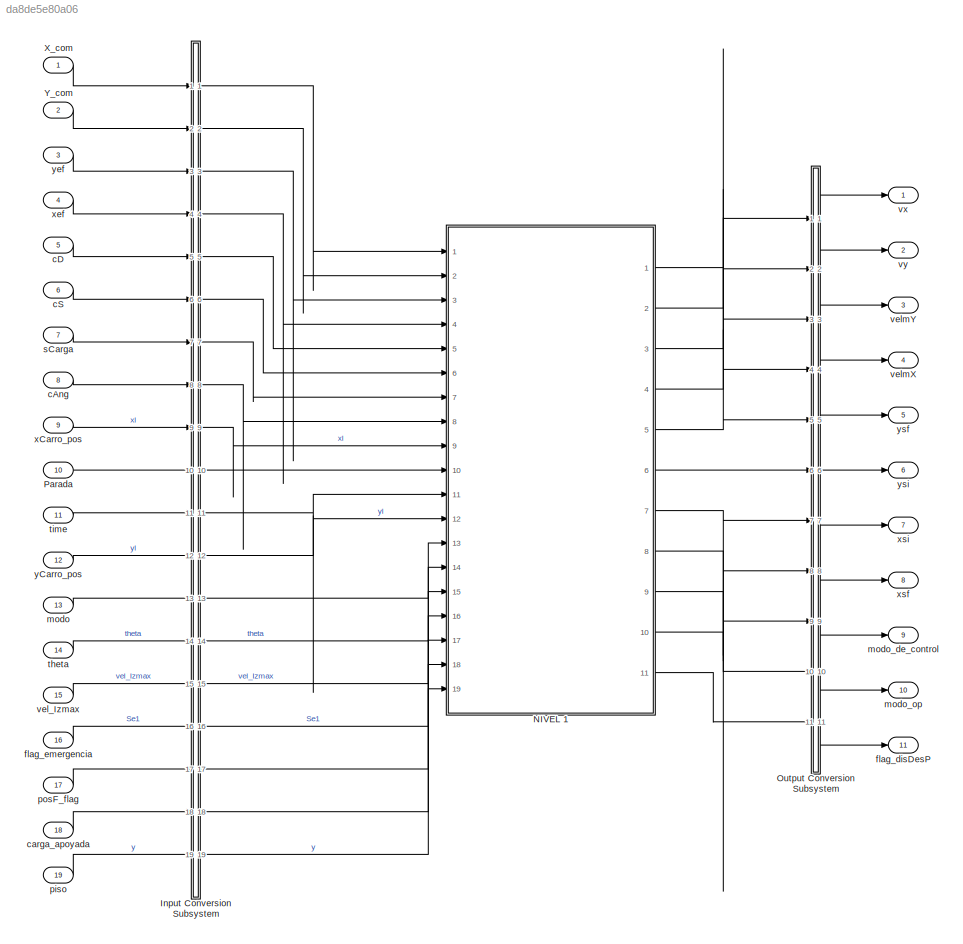
MODEL slx_da8de5e80a06
KIND model
CONFIG AbsTol = auto
CONFIG EnableMultiTasking = off
CONFIG FixedStep = 1e-2
CONFIG MaxStep = 1e-4
CONFIG MinStep = auto
CONFIG RelTol = 1e-3
CONFIG SampleTimeConstraint = Unconstrained
CONFIG SolverName = FixedStepAuto
CONFIG StartTime = 0.0
CONFIG StopTime = inf
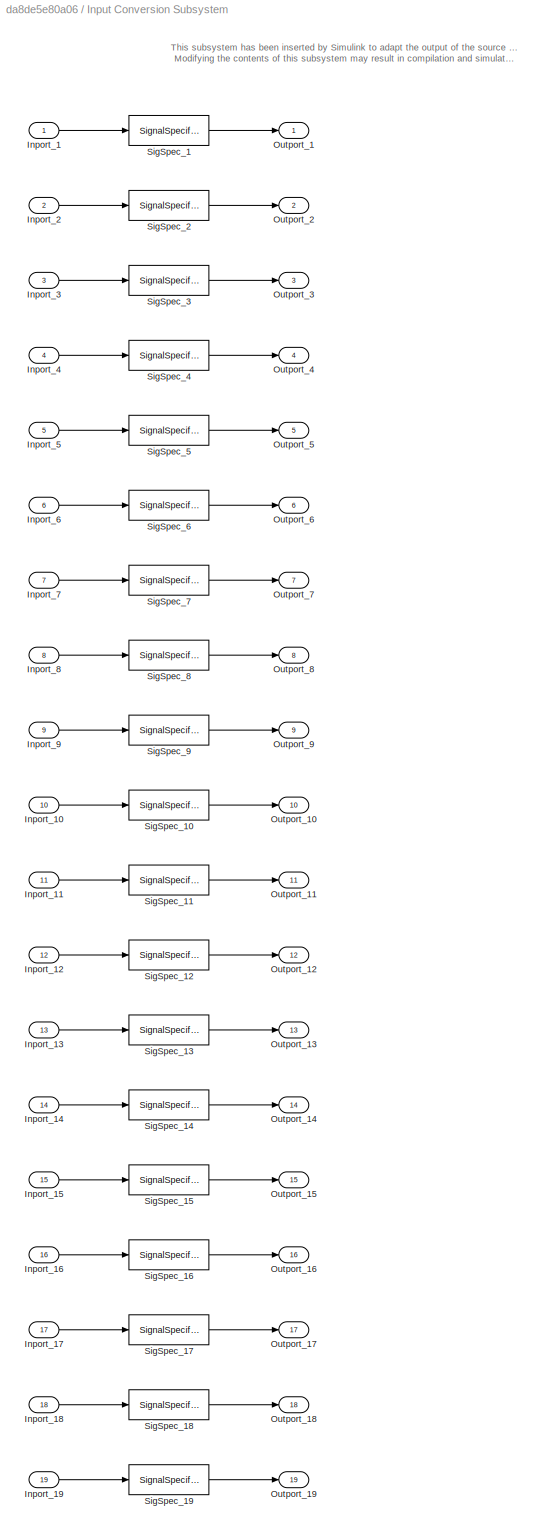
BLOCK [SubSystem] Input Conversion Subsystem
  AttributesFormatString = %<Description>
  Description = Signal spec.\nand routing
  Permissions = ReadOnly
  PermitHierarchicalResolution = ExplicitOnly
  Ports = [19, 19]
  RequestExecContextInheritance = off
  Tag = __SLT_ICS__
  UserDataPersistent = on
BLOCK [Inport] Input Conversion Subsystem/Inport_1
BLOCK [Inport] Input Conversion Subsystem/Inport_10
  Port = 10
BLOCK [Inport] Input Conversion Subsystem/Inport_11
  Port = 11
BLOCK [Inport] Input Conversion Subsystem/Inport_12
  Port = 12
BLOCK [Inport] Input Conversion Subsystem/Inport_13
  Port = 13
BLOCK [Inport] Input Conversion Subsystem/Inport_14
  Port = 14
BLOCK [Inport] Input Conversion Subsystem/Inport_15
  Port = 15
BLOCK [Inport] Input Conversion Subsystem/Inport_16
  Port = 16
BLOCK [Inport] Input Conversion Subsystem/Inport_17
  Port = 17
BLOCK [Inport] Input Conversion Subsystem/Inport_18
  Port = 18
BLOCK [Inport] Input Conversion Subsystem/Inport_19
  Port = 19
BLOCK [Inport] Input Conversion Subsystem/Inport_2
  Port = 2
BLOCK [Inport] Input Conversion Subsystem/Inport_3
  Port = 3
BLOCK [Inport] Input Conversion Subsystem/Inport_4
  Port = 4
BLOCK [Inport] Input Conversion Subsystem/Inport_5
  Port = 5
BLOCK [Inport] Input Conversion Subsystem/Inport_6
  Port = 6
BLOCK [Inport] Input Conversion Subsystem/Inport_7
  Port = 7
BLOCK [Inport] Input Conversion Subsystem/Inport_8
  Port = 8
BLOCK [Inport] Input Conversion Subsystem/Inport_9
  Port = 9
BLOCK [Outport] Input Conversion Subsystem/Outport_1
BLOCK [Outport] Input Conversion Subsystem/Outport_10
  Port = 10
BLOCK [Outport] Input Conversion Subsystem/Outport_11
  Port = 11
BLOCK [Outport] Input Conversion Subsystem/Outport_12
  Port = 12
BLOCK [Outport] Input Conversion Subsystem/Outport_13
  Port = 13
BLOCK [Outport] Input Conversion Subsystem/Outport_14
  Port = 14
BLOCK [Outport] Input Conversion Subsystem/Outport_15
  Port = 15
BLOCK [Outport] Input Conversion Subsystem/Outport_16
  Port = 16
BLOCK [Outport] Input Conversion Subsystem/Outport_17
  Port = 17
BLOCK [Outport] Input Conversion Subsystem/Outport_18
  Port = 18
BLOCK [Outport] Input Conversion Subsystem/Outport_19
  Port = 19
BLOCK [Outport] Input Conversion Subsystem/Outport_2
  Port = 2
BLOCK [Outport] Input Conversion Subsystem/Outport_3
  Port = 3
BLOCK [Outport] Input Conversion Subsystem/Outport_4
  Port = 4
BLOCK [Outport] Input Conversion Subsystem/Outport_5
  Port = 5
BLOCK [Outport] Input Conversion Subsystem/Outport_6
  Port = 6
BLOCK [Outport] Input Conversion Subsystem/Outport_7
  Port = 7
BLOCK [Outport] Input Conversion Subsystem/Outport_8
  Port = 8
BLOCK [Outport] Input Conversion Subsystem/Outport_9
  Port = 9
BLOCK [SignalSpecification] Input Conversion Subsystem/SigSpec_1
  Dimensions = [1]
  OutDataTypeStr = double
  SampleTime = 0.01
  SignalType = real
  VarSizeSig = No
BLOCK [SignalSpecification] Input Conversion Subsystem/SigSpec_10
  Dimensions = [1]
  OutDataTypeStr = double
  SampleTime = 0.01
  SignalType = real
  VarSizeSig = No
BLOCK [SignalSpecification] Input Conversion Subsystem/SigSpec_11
  Dimensions = [1]
  OutDataTypeStr = double
  SampleTime = [0, 0]
  SignalType = real
  VarSizeSig = No
BLOCK [SignalSpecification] Input Conversion Subsystem/SigSpec_12
  Dimensions = [1]
  OutDataTypeStr = double
  SampleTime = [0, 0]
  SignalType = real
  VarSizeSig = No
BLOCK [SignalSpecification] Input Conversion Subsystem/SigSpec_13
  Dimensions = [1]
  OutDataTypeStr = double
  SampleTime = 0.01
  SignalType = real
  VarSizeSig = No
BLOCK [SignalSpecification] Input Conversion Subsystem/SigSpec_14
  Dimensions = [1]
  OutDataTypeStr = double
  SampleTime = [0, 0]
  SignalType = real
  VarSizeSig = No
BLOCK [SignalSpecification] Input Conversion Subsystem/SigSpec_15
  Dimensions = [1]
  OutDataTypeStr = double
  SampleTime = 0.01
  SignalType = real
  VarSizeSig = No
BLOCK [SignalSpecification] Input Conversion Subsystem/SigSpec_16
  Dimensions = [1]
  OutDataTypeStr = double
  SampleTime = 0.01
  SignalType = real
  VarSizeSig = No
BLOCK [SignalSpecification] Input Conversion Subsystem/SigSpec_17
  Dimensions = [1]
  OutDataTypeStr = double
  SampleTime = [-1, 0]
  SignalType = real
  VarSizeSig = No
BLOCK [SignalSpecification] Input Conversion Subsystem/SigSpec_18
  Dimensions = [1]
  OutDataTypeStr = double
  SampleTime = [0, 0]
  SignalType = real
  VarSizeSig = No
BLOCK [SignalSpecification] Input Conversion Subsystem/SigSpec_19
  Dimensions = [1]
  OutDataTypeStr = double
  SampleTime = [0, 0]
  SignalType = real
  VarSizeSig = No
BLOCK [SignalSpecification] Input Conversion Subsystem/SigSpec_2
  Dimensions = [1]
  OutDataTypeStr = double
  SampleTime = 0.01
  SignalType = real
  VarSizeSig = No
BLOCK [SignalSpecification] Input Conversion Subsystem/SigSpec_3
  Dimensions = [1]
  OutDataTypeStr = double
  SampleTime = [-1, 0]
  SignalType = real
  VarSizeSig = No
BLOCK [SignalSpecification] Input Conversion Subsystem/SigSpec_4
  Dimensions = [1]
  OutDataTypeStr = double
  SampleTime = [-1, 0]
  SignalType = real
  VarSizeSig = No
BLOCK [SignalSpecification] Input Conversion Subsystem/SigSpec_5
  Dimensions = [1]
  OutDataTypeStr = double
  SampleTime = 0.01
  SignalType = real
  VarSizeSig = No
BLOCK [SignalSpecification] Input Conversion Subsystem/SigSpec_6
  Dimensions = [1]
  OutDataTypeStr = double
  SampleTime = 0.01
  SignalType = real
  VarSizeSig = No
BLOCK [SignalSpecification] Input Conversion Subsystem/SigSpec_7
  Dimensions = [1]
  OutDataTypeStr = double
  SampleTime = [-1, 0]
  SignalType = real
  VarSizeSig = No
BLOCK [SignalSpecification] Input Conversion Subsystem/SigSpec_8
  Dimensions = [1]
  OutDataTypeStr = double
  SampleTime = [-1, 0]
  SignalType = real
  VarSizeSig = No
BLOCK [SignalSpecification] Input Conversion Subsystem/SigSpec_9
  Dimensions = [1]
  OutDataTypeStr = double
  SampleTime = [0, 0]
  SignalType = real
  VarSizeSig = No
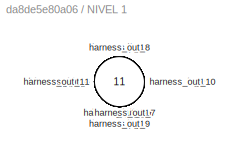
BLOCK [SubSystem] NIVEL 1
  Ports = [19, 11]
  RequestExecContextInheritance = off
  Tag = __SL_testing_harness_stub_
BLOCK [Inport] NIVEL 1/harness_in_1
BLOCK [Inport] NIVEL 1/harness_in_10
  Port = 10
BLOCK [Inport] NIVEL 1/harness_in_11
  Port = 11
BLOCK [Inport] NIVEL 1/harness_in_12
  Port = 12
BLOCK [Inport] NIVEL 1/harness_in_13
  Port = 13
BLOCK [Inport] NIVEL 1/harness_in_14
  Port = 14
BLOCK [Inport] NIVEL 1/harness_in_15
  Port = 15
BLOCK [Inport] NIVEL 1/harness_in_16
  Port = 16
BLOCK [Inport] NIVEL 1/harness_in_17
  Port = 17
BLOCK [Inport] NIVEL 1/harness_in_18
  Port = 18
BLOCK [Inport] NIVEL 1/harness_in_19
  Port = 19
BLOCK [Inport] NIVEL 1/harness_in_2
  Port = 2
BLOCK [Inport] NIVEL 1/harness_in_3
  Port = 3
BLOCK [Inport] NIVEL 1/harness_in_4
  Port = 4
BLOCK [Inport] NIVEL 1/harness_in_5
  Port = 5
BLOCK [Inport] NIVEL 1/harness_in_6
  Port = 6
BLOCK [Inport] NIVEL 1/harness_in_7
  Port = 7
BLOCK [Inport] NIVEL 1/harness_in_8
  Port = 8
BLOCK [Inport] NIVEL 1/harness_in_9
  Port = 9
BLOCK [Outport] NIVEL 1/harness_out_1
BLOCK [Outport] NIVEL 1/harness_out_10
  Port = 10
BLOCK [Outport] NIVEL 1/harness_out_11
  Port = 11
BLOCK [Outport] NIVEL 1/harness_out_2
  Port = 2
BLOCK [Outport] NIVEL 1/harness_out_3
  Port = 3
BLOCK [Outport] NIVEL 1/harness_out_4
  Port = 4
BLOCK [Outport] NIVEL 1/harness_out_5
  Port = 5
BLOCK [Outport] NIVEL 1/harness_out_6
  Port = 6
BLOCK [Outport] NIVEL 1/harness_out_7
  Port = 7
BLOCK [Outport] NIVEL 1/harness_out_8
  Port = 8
BLOCK [Outport] NIVEL 1/harness_out_9
  Port = 9
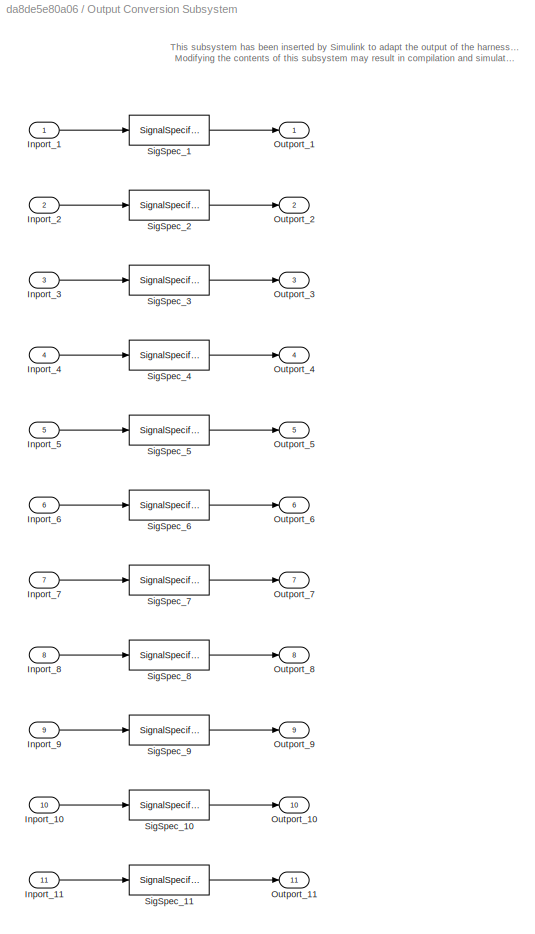
BLOCK [SubSystem] Output Conversion Subsystem
  AttributesFormatString = %<Description>
  Description = Signal spec.\nand routing
  Permissions = ReadOnly
  PermitHierarchicalResolution = ExplicitOnly
  Ports = [11, 11]
  RequestExecContextInheritance = off
  Tag = __SLT_OCS__
  UserDataPersistent = on
BLOCK [Inport] Output Conversion Subsystem/Inport_1
BLOCK [Inport] Output Conversion Subsystem/Inport_10
  Port = 10
BLOCK [Inport] Output Conversion Subsystem/Inport_11
  Port = 11
BLOCK [Inport] Output Conversion Subsystem/Inport_2
  Port = 2
BLOCK [Inport] Output Conversion Subsystem/Inport_3
  Port = 3
BLOCK [Inport] Output Conversion Subsystem/Inport_4
  Port = 4
BLOCK [Inport] Output Conversion Subsystem/Inport_5
  Port = 5
BLOCK [Inport] Output Conversion Subsystem/Inport_6
  Port = 6
BLOCK [Inport] Output Conversion Subsystem/Inport_7
  Port = 7
BLOCK [Inport] Output Conversion Subsystem/Inport_8
  Port = 8
BLOCK [Inport] Output Conversion Subsystem/Inport_9
  Port = 9
BLOCK [Outport] Output Conversion Subsystem/Outport_1
BLOCK [Outport] Output Conversion Subsystem/Outport_10
  Port = 10
BLOCK [Outport] Output Conversion Subsystem/Outport_11
  Port = 11
BLOCK [Outport] Output Conversion Subsystem/Outport_2
  Port = 2
BLOCK [Outport] Output Conversion Subsystem/Outport_3
  Port = 3
BLOCK [Outport] Output Conversion Subsystem/Outport_4
  Port = 4
BLOCK [Outport] Output Conversion Subsystem/Outport_5
  Port = 5
BLOCK [Outport] Output Conversion Subsystem/Outport_6
  Port = 6
BLOCK [Outport] Output Conversion Subsystem/Outport_7
  Port = 7
BLOCK [Outport] Output Conversion Subsystem/Outport_8
  Port = 8
BLOCK [Outport] Output Conversion Subsystem/Outport_9
  Port = 9
BLOCK [SignalSpecification] Output Conversion Subsystem/SigSpec_1
  Dimensions = [1]
  OutDataTypeStr = double
  SampleTime = 0.01
  SignalType = real
  VarSizeSig = No
BLOCK [SignalSpecification] Output Conversion Subsystem/SigSpec_10
  Dimensions = [1]
  OutDataTypeStr = double
  SampleTime = 0.01
  SignalType = real
  VarSizeSig = No
BLOCK [SignalSpecification] Output Conversion Subsystem/SigSpec_11
  Dimensions = [1]
  OutDataTypeStr = double
  SampleTime = 0.01
  SignalType = real
  VarSizeSig = No
BLOCK [SignalSpecification] Output Conversion Subsystem/SigSpec_2
  Dimensions = [1]
  OutDataTypeStr = double
  SampleTime = 0.01
  SignalType = real
  VarSizeSig = No
BLOCK [SignalSpecification] Output Conversion Subsystem/SigSpec_3
  Dimensions = [1]
  OutDataTypeStr = double
  SampleTime = 0.01
  SignalType = real
  VarSizeSig = No
BLOCK [SignalSpecification] Output Conversion Subsystem/SigSpec_4
  Dimensions = [1]
  OutDataTypeStr = double
  SampleTime = 0.01
  SignalType = real
  VarSizeSig = No
BLOCK [SignalSpecification] Output Conversion Subsystem/SigSpec_5
  Dimensions = [1]
  OutDataTypeStr = double
  SampleTime = 0.01
  SignalType = real
  VarSizeSig = No
BLOCK [SignalSpecification] Output Conversion Subsystem/SigSpec_6
  Dimensions = [1]
  OutDataTypeStr = double
  SampleTime = 0.01
  SignalType = real
  VarSizeSig = No
BLOCK [SignalSpecification] Output Conversion Subsystem/SigSpec_7
  Dimensions = [1]
  OutDataTypeStr = double
  SampleTime = 0.01
  SignalType = real
  VarSizeSig = No
BLOCK [SignalSpecification] Output Conversion Subsystem/SigSpec_8
  Dimensions = [1]
  OutDataTypeStr = double
  SampleTime = 0.01
  SignalType = real
  VarSizeSig = No
BLOCK [SignalSpecification] Output Conversion Subsystem/SigSpec_9
  Dimensions = [1, 1]
  OutDataTypeStr = double
  SampleTime = 0.01
  SignalType = real
  VarSizeSig = No
BLOCK [Inport] Parada
  OutDataTypeStr = double
  Port = 10
  PortDimensions = [1]
  SampleTime = 0.01
  SignalType = real
  VarSizeSig = No
BLOCK [Inport] X_com
  OutDataTypeStr = double
  PortDimensions = [1]
  SampleTime = 0.01
  SignalType = real
  VarSizeSig = No
BLOCK [Inport] Y_com
  OutDataTypeStr = double
  Port = 2
  PortDimensions = [1]
  SampleTime = 0.01
  SignalType = real
  VarSizeSig = No
BLOCK [Inport] cAng
  OutDataTypeStr = double
  Port = 8
  PortDimensions = [1]
  SampleTime = [-1, 0]
  SignalType = real
  VarSizeSig = No
BLOCK [Inport] cD
  OutDataTypeStr = double
  Port = 5
  PortDimensions = [1]
  SampleTime = 0.01
  SignalType = real
  VarSizeSig = No
BLOCK [Inport] cS
  OutDataTypeStr = double
  Port = 6
  PortDimensions = [1]
  SampleTime = 0.01
  SignalType = real
  VarSizeSig = No
BLOCK [Inport] carga_apoyada
  OutDataTypeStr = double
  Port = 18
  PortDimensions = [1]
  SampleTime = 0
  SignalType = real
  VarSizeSig = No
BLOCK [Outport] flag_disDesP
  Port = 11
BLOCK [Inport] flag_emergencia
  OutDataTypeStr = double
  Port = 16
  PortDimensions = [1]
  SampleTime = 0.01
  SignalType = real
  VarSizeSig = No
BLOCK [Inport] modo
  OutDataTypeStr = double
  Port = 13
  PortDimensions = [1]
  SampleTime = 0.01
  SignalType = real
  VarSizeSig = No
BLOCK [Outport] modo_de_control
  Port = 9
BLOCK [Outport] modo_op
  Port = 10
BLOCK [Inport] piso
  OutDataTypeStr = double
  Port = 19
  PortDimensions = [1]
  SampleTime = 0
  SignalType = real
  VarSizeSig = No
BLOCK [Inport] posF_flag
  OutDataTypeStr = double
  Port = 17
  PortDimensions = [1]
  SampleTime = [-1, 0]
  SignalType = real
  VarSizeSig = No
BLOCK [Inport] sCarga
  OutDataTypeStr = double
  Port = 7
  PortDimensions = [1]
  SampleTime = [-1, 0]
  SignalType = real
  VarSizeSig = No
BLOCK [Inport] theta
  OutDataTypeStr = double
  Port = 14
  PortDimensions = [1]
  SampleTime = 0
  SignalType = real
  VarSizeSig = No
BLOCK [Inport] time
  OutDataTypeStr = double
  Port = 11
  PortDimensions = [1]
  SampleTime = 0
  SignalType = real
  VarSizeSig = No
BLOCK [Inport] vel_Izmax
  OutDataTypeStr = double
  Port = 15
  PortDimensions = [1]
  SampleTime = 0.01
  SignalType = real
  VarSizeSig = No
BLOCK [Outport] velmX
  Port = 4
BLOCK [Outport] velmY
  Port = 3
BLOCK [Outport] vx
BLOCK [Outport] vy
  Port = 2
BLOCK [Inport] xCarro_pos
  OutDataTypeStr = double
  Port = 9
  PortDimensions = [1]
  SampleTime = 0
  SignalType = real
  VarSizeSig = No
BLOCK [Inport] xef
  OutDataTypeStr = double
  Port = 4
  PortDimensions = [1]
  SampleTime = [-1, 0]
  SignalType = real
  VarSizeSig = No
BLOCK [Outport] xsf
  Port = 8
BLOCK [Outport] xsi
  Port = 7
BLOCK [Inport] yCarro_pos
  OutDataTypeStr = double
  Port = 12
  PortDimensions = [1]
  SampleTime = 0
  SignalType = real
  VarSizeSig = No
BLOCK [Inport] yef
  OutDataTypeStr = double
  Port = 3
  PortDimensions = [1]
  SampleTime = [-1, 0]
  SignalType = real
  VarSizeSig = No
BLOCK [Outport] ysf
  Port = 5
BLOCK [Outport] ysi
  Port = 6
ANNOTATION Input Conversion Subsystem: This subsystem has been inserted by Simulink to adapt the output of the source blocks to the interface required by the harnessed component. Modifying the contents of this subsystem may result in compilation and simulation failure.
ANNOTATION Output Conversion Subsystem: This subsystem has been inserted by Simulink to adapt the output of the harnessed component to the interface required by the sink blocks. Modifying the contents of this subsystem may result in compilation and simulation failure.
LINE Input Conversion Subsystem/Inport_10:1 -> Input Conversion Subsystem/SigSpec_10:1
LINE Input Conversion Subsystem/Inport_11:1 -> Input Conversion Subsystem/SigSpec_11:1
LINE Input Conversion Subsystem/Inport_12:1 -> Input Conversion Subsystem/SigSpec_12:1
LINE Input Conversion Subsystem/Inport_13:1 -> Input Conversion Subsystem/SigSpec_13:1
LINE Input Conversion Subsystem/Inport_14:1 -> Input Conversion Subsystem/SigSpec_14:1
LINE Input Conversion Subsystem/Inport_15:1 -> Input Conversion Subsystem/SigSpec_15:1
LINE Input Conversion Subsystem/Inport_16:1 -> Input Conversion Subsystem/SigSpec_16:1
LINE Input Conversion Subsystem/Inport_17:1 -> Input Conversion Subsystem/SigSpec_17:1
LINE Input Conversion Subsystem/Inport_18:1 -> Input Conversion Subsystem/SigSpec_18:1
LINE Input Conversion Subsystem/Inport_19:1 -> Input Conversion Subsystem/SigSpec_19:1
LINE Input Conversion Subsystem/Inport_1:1 -> Input Conversion Subsystem/SigSpec_1:1
LINE Input Conversion Subsystem/Inport_2:1 -> Input Conversion Subsystem/SigSpec_2:1
LINE Input Conversion Subsystem/Inport_3:1 -> Input Conversion Subsystem/SigSpec_3:1
LINE Input Conversion Subsystem/Inport_4:1 -> Input Conversion Subsystem/SigSpec_4:1
LINE Input Conversion Subsystem/Inport_5:1 -> Input Conversion Subsystem/SigSpec_5:1
LINE Input Conversion Subsystem/Inport_6:1 -> Input Conversion Subsystem/SigSpec_6:1
LINE Input Conversion Subsystem/Inport_7:1 -> Input Conversion Subsystem/SigSpec_7:1
LINE Input Conversion Subsystem/Inport_8:1 -> Input Conversion Subsystem/SigSpec_8:1
LINE Input Conversion Subsystem/Inport_9:1 -> Input Conversion Subsystem/SigSpec_9:1
LINE Input Conversion Subsystem/SigSpec_10:1 -> Input Conversion Subsystem/Outport_10:1
LINE Input Conversion Subsystem/SigSpec_11:1 -> Input Conversion Subsystem/Outport_11:1
LINE Input Conversion Subsystem/SigSpec_12:1 -> Input Conversion Subsystem/Outport_12:1
LINE Input Conversion Subsystem/SigSpec_13:1 -> Input Conversion Subsystem/Outport_13:1
LINE Input Conversion Subsystem/SigSpec_14:1 -> Input Conversion Subsystem/Outport_14:1
LINE Input Conversion Subsystem/SigSpec_15:1 -> Input Conversion Subsystem/Outport_15:1
LINE Input Conversion Subsystem/SigSpec_16:1 -> Input Conversion Subsystem/Outport_16:1
LINE Input Conversion Subsystem/SigSpec_17:1 -> Input Conversion Subsystem/Outport_17:1
LINE Input Conversion Subsystem/SigSpec_18:1 -> Input Conversion Subsystem/Outport_18:1
LINE Input Conversion Subsystem/SigSpec_19:1 -> Input Conversion Subsystem/Outport_19:1
LINE Input Conversion Subsystem/SigSpec_1:1 -> Input Conversion Subsystem/Outport_1:1
LINE Input Conversion Subsystem/SigSpec_2:1 -> Input Conversion Subsystem/Outport_2:1
LINE Input Conversion Subsystem/SigSpec_3:1 -> Input Conversion Subsystem/Outport_3:1
LINE Input Conversion Subsystem/SigSpec_4:1 -> Input Conversion Subsystem/Outport_4:1
LINE Input Conversion Subsystem/SigSpec_5:1 -> Input Conversion Subsystem/Outport_5:1
LINE Input Conversion Subsystem/SigSpec_6:1 -> Input Conversion Subsystem/Outport_6:1
LINE Input Conversion Subsystem/SigSpec_7:1 -> Input Conversion Subsystem/Outport_7:1
LINE Input Conversion Subsystem/SigSpec_8:1 -> Input Conversion Subsystem/Outport_8:1
LINE Input Conversion Subsystem/SigSpec_9:1 -> Input Conversion Subsystem/Outport_9:1
LINE Input Conversion Subsystem:1 -> NIVEL 1:1
LINE Input Conversion Subsystem:10 -> NIVEL 1:10
LINE Input Conversion Subsystem:11 -> NIVEL 1:11
LINE Input Conversion Subsystem:12 -> NIVEL 1:12
LINE Input Conversion Subsystem:13 -> NIVEL 1:13
LINE Input Conversion Subsystem:14 -> NIVEL 1:14
LINE Input Conversion Subsystem:15 -> NIVEL 1:15
LINE Input Conversion Subsystem:16 -> NIVEL 1:16
LINE Input Conversion Subsystem:17 -> NIVEL 1:17
LINE Input Conversion Subsystem:18 -> NIVEL 1:18
LINE Input Conversion Subsystem:19 -> NIVEL 1:19
LINE Input Conversion Subsystem:2 -> NIVEL 1:2
LINE Input Conversion Subsystem:3 -> NIVEL 1:3
LINE Input Conversion Subsystem:4 -> NIVEL 1:4
LINE Input Conversion Subsystem:5 -> NIVEL 1:5
LINE Input Conversion Subsystem:6 -> NIVEL 1:6
LINE Input Conversion Subsystem:7 -> NIVEL 1:7
LINE Input Conversion Subsystem:8 -> NIVEL 1:8
LINE Input Conversion Subsystem:9 -> NIVEL 1:9
LINE NIVEL 1:1 -> Output Conversion Subsystem:1
LINE NIVEL 1:10 -> Output Conversion Subsystem:10
LINE NIVEL 1:11 -> Output Conversion Subsystem:11
LINE NIVEL 1:2 -> Output Conversion Subsystem:2
LINE NIVEL 1:3 -> Output Conversion Subsystem:3
LINE NIVEL 1:4 -> Output Conversion Subsystem:4
LINE NIVEL 1:5 -> Output Conversion Subsystem:5
LINE NIVEL 1:6 -> Output Conversion Subsystem:6
LINE NIVEL 1:7 -> Output Conversion Subsystem:7
LINE NIVEL 1:8 -> Output Conversion Subsystem:8
LINE NIVEL 1:9 -> Output Conversion Subsystem:9
LINE Output Conversion Subsystem/Inport_10:1 -> Output Conversion Subsystem/SigSpec_10:1
LINE Output Conversion Subsystem/Inport_11:1 -> Output Conversion Subsystem/SigSpec_11:1
LINE Output Conversion Subsystem/Inport_1:1 -> Output Conversion Subsystem/SigSpec_1:1
LINE Output Conversion Subsystem/Inport_2:1 -> Output Conversion Subsystem/SigSpec_2:1
LINE Output Conversion Subsystem/Inport_3:1 -> Output Conversion Subsystem/SigSpec_3:1
LINE Output Conversion Subsystem/Inport_4:1 -> Output Conversion Subsystem/SigSpec_4:1
LINE Output Conversion Subsystem/Inport_5:1 -> Output Conversion Subsystem/SigSpec_5:1
LINE Output Conversion Subsystem/Inport_6:1 -> Output Conversion Subsystem/SigSpec_6:1
LINE Output Conversion Subsystem/Inport_7:1 -> Output Conversion Subsystem/SigSpec_7:1
LINE Output Conversion Subsystem/Inport_8:1 -> Output Conversion Subsystem/SigSpec_8:1
LINE Output Conversion Subsystem/Inport_9:1 -> Output Conversion Subsystem/SigSpec_9:1
LINE Output Conversion Subsystem/SigSpec_10:1 -> Output Conversion Subsystem/Outport_10:1
LINE Output Conversion Subsystem/SigSpec_11:1 -> Output Conversion Subsystem/Outport_11:1
LINE Output Conversion Subsystem/SigSpec_1:1 -> Output Conversion Subsystem/Outport_1:1
LINE Output Conversion Subsystem/SigSpec_2:1 -> Output Conversion Subsystem/Outport_2:1
LINE Output Conversion Subsystem/SigSpec_3:1 -> Output Conversion Subsystem/Outport_3:1
LINE Output Conversion Subsystem/SigSpec_4:1 -> Output Conversion Subsystem/Outport_4:1
LINE Output Conversion Subsystem/SigSpec_5:1 -> Output Conversion Subsystem/Outport_5:1
LINE Output Conversion Subsystem/SigSpec_6:1 -> Output Conversion Subsystem/Outport_6:1
LINE Output Conversion Subsystem/SigSpec_7:1 -> Output Conversion Subsystem/Outport_7:1
LINE Output Conversion Subsystem/SigSpec_8:1 -> Output Conversion Subsystem/Outport_8:1
LINE Output Conversion Subsystem/SigSpec_9:1 -> Output Conversion Subsystem/Outport_9:1
LINE Output Conversion Subsystem:1 -> vx:1
LINE Output Conversion Subsystem:10 -> modo_op:1
LINE Output Conversion Subsystem:11 -> flag_disDesP:1
LINE Output Conversion Subsystem:2 -> vy:1
LINE Output Conversion Subsystem:3 -> velmY:1
LINE Output Conversion Subsystem:4 -> velmX:1
LINE Output Conversion Subsystem:5 -> ysf:1
LINE Output Conversion Subsystem:6 -> ysi:1
LINE Output Conversion Subsystem:7 -> xsi:1
LINE Output Conversion Subsystem:8 -> xsf:1
LINE Output Conversion Subsystem:9 -> modo_de_control:1
LINE Parada:1 -> Input Conversion Subsystem:10
LINE X_com:1 -> Input Conversion Subsystem:1
LINE Y_com:1 -> Input Conversion Subsystem:2
LINE cAng:1 -> Input Conversion Subsystem:8
LINE cD:1 -> Input Conversion Subsystem:5
LINE cS:1 -> Input Conversion Subsystem:6
LINE carga_apoyada:1 -> Input Conversion Subsystem:18
LINE flag_emergencia:1 -> Input Conversion Subsystem:16
LINE modo:1 -> Input Conversion Subsystem:13
LINE piso:1 -> Input Conversion Subsystem:19
LINE posF_flag:1 -> Input Conversion Subsystem:17
LINE sCarga:1 -> Input Conversion Subsystem:7
LINE theta:1 -> Input Conversion Subsystem:14
LINE time:1 -> Input Conversion Subsystem:11
LINE vel_Izmax:1 -> Input Conversion Subsystem:15
LINE xCarro_pos:1 -> Input Conversion Subsystem:9
LINE xef:1 -> Input Conversion Subsystem:4
LINE yCarro_pos:1 -> Input Conversion Subsystem:12
LINE yef:1 -> Input Conversion Subsystem:3
